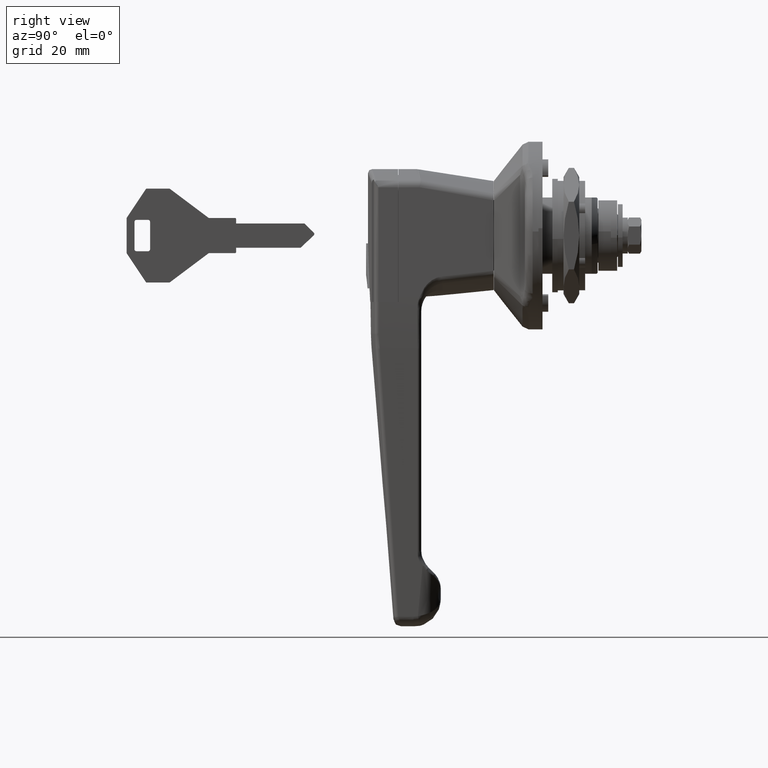
[diagram: clean part render]
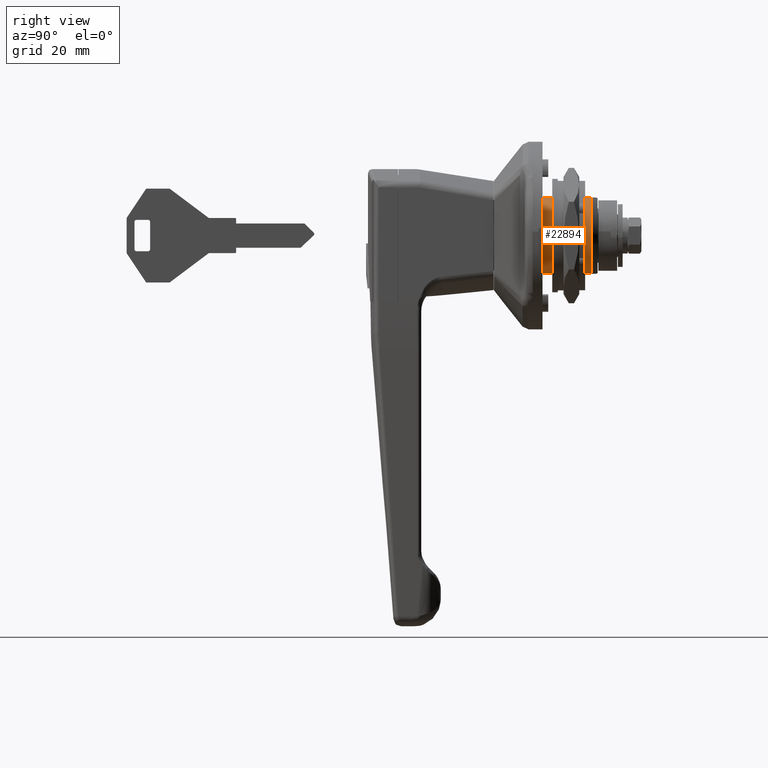
[diagram: same view with one face highlighted and labeled with its STEP entity id]
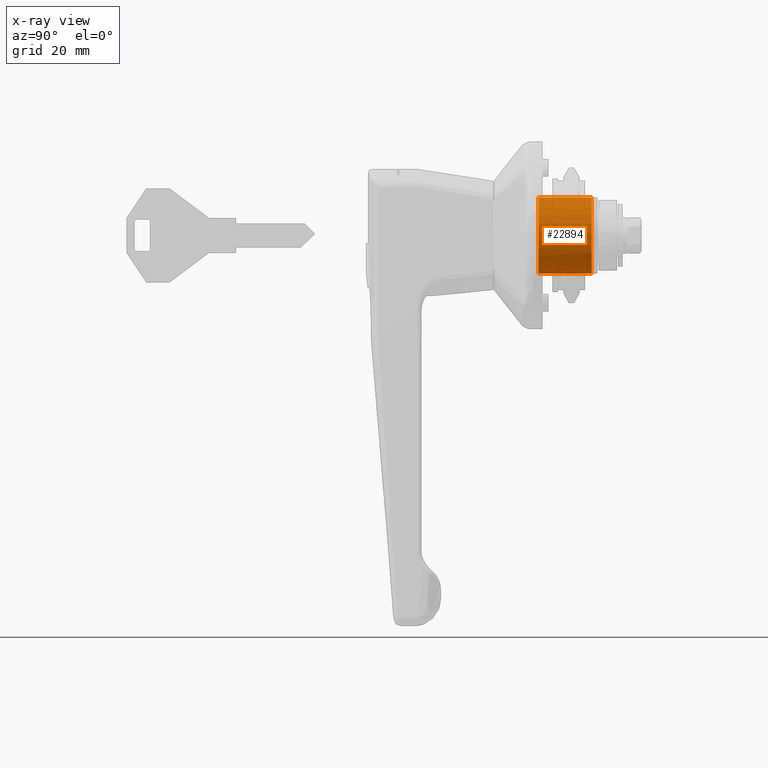
[diagram: x-ray of the same camera — body ghosted, the highlighted face saturated]
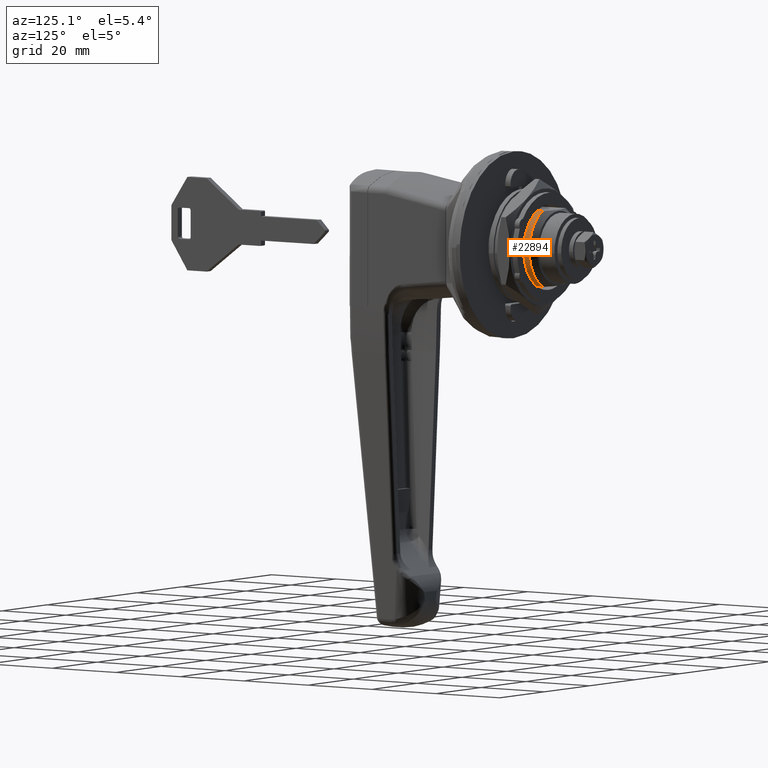
[diagram: same view with one face highlighted and labeled with its STEP entity id]
A machine part, right view. The second image highlights one B-rep face of the part: STEP entity #22894.
The next image is the same camera in x-ray: the body ghosted, the highlighted face saturated — about 0% of this face is hidden behind the body in this view.
A second angle (auxiliary view) of the same face is appended — the face is thin or edge-on in the first view.
In plain terms, the highlighted face is a freeform B-spline surface patch.
Its self-contained STEP definition (entity closure, byte-faithful):
#18477=CARTESIAN_POINT('',(12.599999999947880,-10.762814312202661,-2.271965686843016));
#18478=VERTEX_POINT('',#18477);
#18484=CARTESIAN_POINT('',(12.600000000000000,-5.092887196865510,-9.750000000000171));
#18485=VERTEX_POINT('',#18484);
#18486=CARTESIAN_POINT('',(12.600000000000000,-5.092887196865512,-9.750000000000172));
#18487=CARTESIAN_POINT('',(12.599999999999996,-9.691285729169678,-7.348038460384107));
#18488=CARTESIAN_POINT('',(12.599999999947880,-10.762814312202668,-2.271965686843016));
#18496=(BOUNDED_CURVE()B_SPLINE_CURVE(2,(#18486,#18487,#18488),.UNSPECIFIED.,.F.,.U.)B_SPLINE_CURVE_WITH_KNOTS((3,3),(0.0,0.402118987367243),.UNSPECIFIED.)CURVE()GEOMETRIC_REPRESENTATION_ITEM()RATIONAL_B_SPLINE_CURVE((1.0,0.883606446103604,0.954429124322781))REPRESENTATION_ITEM(''));
#18497=EDGE_CURVE('',#18485,#18478,#18496,.T.);
#18607=CARTESIAN_POINT('',(12.600000000000000,-5.092887196865510,9.750000000000171));
#18608=VERTEX_POINT('',#18607);
#18641=CARTESIAN_POINT('',(12.599999999947880,-10.762814312202668,-2.271965686843016));
#18642=CARTESIAN_POINT('',(12.599999999999996,-11.000000000000005,-1.148363543609444));
#18643=CARTESIAN_POINT('',(12.600000000000000,-11.0,0.0));
#18644=CARTESIAN_POINT('',(12.600000000000001,-11.0,6.664434957382381));
#18645=CARTESIAN_POINT('',(12.600000000000000,-5.092887196865513,9.750000000000171));
#18653=(BOUNDED_CURVE()B_SPLINE_CURVE(2,(#18641,#18642,#18643,#18644,#18645),.UNSPECIFIED.,.F.,.U.)B_SPLINE_CURVE_WITH_KNOTS((3,2,3),(0.402118987367243,0.500000000000000,1.0),.UNSPECIFIED.)CURVE()GEOMETRIC_REPRESENTATION_ITEM()RATIONAL_B_SPLINE_CURVE((0.954429124322781,0.971668289045750,1.0,0.855274735149353,1.0))REPRESENTATION_ITEM(''));
#18654=EDGE_CURVE('',#18478,#18608,#18653,.T.);
#18682=CARTESIAN_POINT('',(-1.0,-5.092887196865510,9.750000000000171));
#18683=VERTEX_POINT('',#18682);
#18689=CARTESIAN_POINT('',(12.600000000000000,-5.092887196865510,9.750000000000171));
#18690=CARTESIAN_POINT('',(-1.0,-5.092887196865510,9.750000000000171));
#18691=QUASI_UNIFORM_CURVE('',1,(#18689,#18690),.UNSPECIFIED.,.F.,.U.);
#18692=EDGE_CURVE('',#18608,#18683,#18691,.T.);
#18710=CARTESIAN_POINT('',(-1.0,-5.092887196865510,-9.750000000000171));
#18711=VERTEX_POINT('',#18710);
#18723=CARTESIAN_POINT('',(-1.0,-5.092887196865510,-9.750000000000171));
#18724=CARTESIAN_POINT('',(12.600000000000000,-5.092887196865510,-9.750000000000171));
#18725=QUASI_UNIFORM_CURVE('',1,(#18723,#18724),.UNSPECIFIED.,.F.,.U.);
#18726=EDGE_CURVE('',#18711,#18485,#18725,.T.);
#22842=CARTESIAN_POINT('',(-0.999999999999980,-5.092887196865511,-9.750000000000172));
#22843=CARTESIAN_POINT('',(-0.999999999999980,-11.0,-6.664434957382384));
#22844=CARTESIAN_POINT('',(-0.999999999999980,-11.0,0.0));
#22845=CARTESIAN_POINT('',(-0.999999999999980,-11.0,6.664434957382381));
#22846=CARTESIAN_POINT('',(-0.999999999999980,-5.092887196865513,9.750000000000171));
#22854=(BOUNDED_CURVE()B_SPLINE_CURVE(2,(#22842,#22843,#22844,#22845,#22846),.UNSPECIFIED.,.F.,.U.)B_SPLINE_CURVE_WITH_KNOTS((3,2,3),(0.0,0.500000000000000,1.0),.UNSPECIFIED.)CURVE()GEOMETRIC_REPRESENTATION_ITEM()RATIONAL_B_SPLINE_CURVE((1.0,0.855274735149353,1.0,0.855274735149353,1.0))REPRESENTATION_ITEM(''));
#22855=EDGE_CURVE('',#18711,#18683,#22854,.T.);
#22873=CARTESIAN_POINT('',(12.940000000000000,-4.808239035968231,9.893474484375609));
#22874=CARTESIAN_POINT('',(-1.348500000000000,-4.808239035968231,9.893474484375609));
#22875=CARTESIAN_POINT('',(12.940000000000001,-26.517487437321808,-0.657243139626725));
#22876=CARTESIAN_POINT('',(-1.348500000000000,-26.517487437321808,-0.657243139626725));
#22877=CARTESIAN_POINT('',(12.940000000000000,-4.312211341956249,-10.119527328008150));
#22878=CARTESIAN_POINT('',(-1.348500000000000,-4.312211341956249,-10.119527328008150));
#22886=(BOUNDED_SURFACE()B_SPLINE_SURFACE(1,2,((#22873,#22875,#22877),(#22874,#22876,#22878)),.UNSPECIFIED.,.F.,.F.,.U.)B_SPLINE_SURFACE_WITH_KNOTS((2,2),(3,3),(0.0,14.288500000000001),(0.0,28.301751016631481),.UNSPECIFIED.)GEOMETRIC_REPRESENTATION_ITEM()RATIONAL_B_SPLINE_SURFACE(((1.0,0.414693242656239,1.0),(1.0,0.414693242656239,1.0)))REPRESENTATION_ITEM('')SURFACE());
#22887=ORIENTED_EDGE('',*,*,#18497,.T.);
#22888=ORIENTED_EDGE('',*,*,#18654,.T.);
#22889=ORIENTED_EDGE('',*,*,#18692,.T.);
#22890=ORIENTED_EDGE('',*,*,#22855,.F.);
#22891=ORIENTED_EDGE('',*,*,#18726,.T.);
#22892=EDGE_LOOP('',(#22887,#22888,#22889,#22890,#22891));
#22893=FACE_OUTER_BOUND('',#22892,.T.);
#22894=ADVANCED_FACE('',(#22893),#22886,.T.);